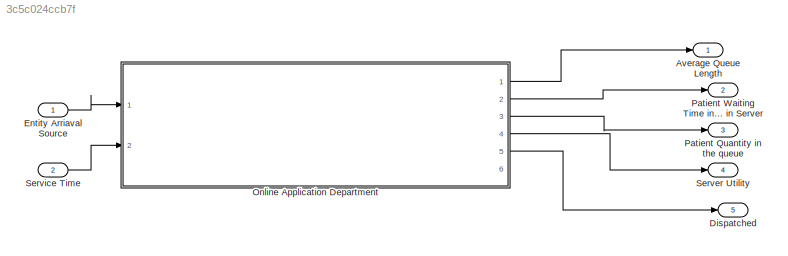
MODEL slx_3c5c024ccb7f
KIND library
CONFIG AbsTol = auto
CONFIG EnableMultiTasking = off
CONFIG FixedStep = auto
CONFIG MaxStep = auto
CONFIG MinStep = auto
CONFIG RelTol = 1e-3
CONFIG SampleTimeConstraint = Unconstrained
CONFIG Solver = VariableStepAuto
CONFIG SolverName = VariableStepAuto
CONFIG StartTime = 0.0
CONFIG StopTime = 10.0
BLOCK [Outport] Average Queue Length
  IconDisplay = Port number
BLOCK [Outport] Dispatched
  IconDisplay = Port number
  Port = 5
BLOCK [Inport] Entity Arriaval Source
  IconDisplay = Port number
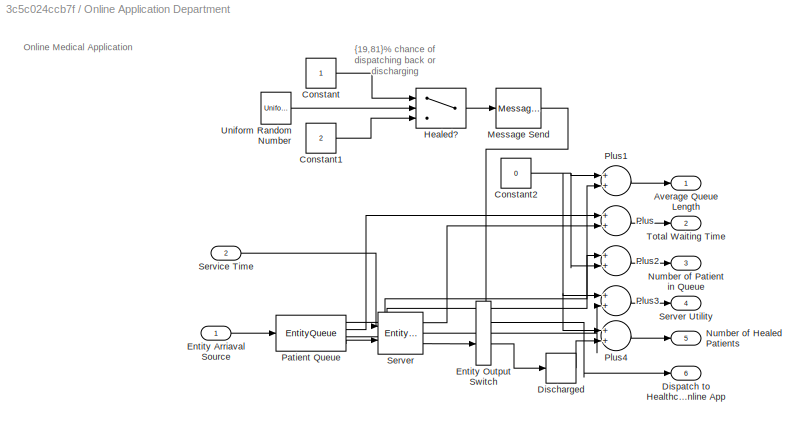
BLOCK [SubSystem] Online Application Department
  Ports = [2, 6]
  RequestExecContextInheritance = off
BLOCK [Outport] Online Application Department/Average Queue Length
  IconDisplay = Port number
BLOCK [Constant] Online Application Department/Constant
  VectorParams1D = off
BLOCK [Constant] Online Application Department/Constant1
  Value = 2
  VectorParams1D = off
BLOCK [Constant] Online Application Department/Constant2
  Value = 0
BLOCK [EntityTerminator] Online Application Department/Discharged
  InputPortMap = u0
  InputPortMessageModes = m
  NumberEntitiesArrived = on
  OutputPortMap = o0
  Ports = [1, 1]
BLOCK [Outport] Online Application Department/Dispatch to Healthcare or Online App
  IconDisplay = Port number
  Port = 6
BLOCK [Inport] Online Application Department/Entity Arriaval Source
  IconDisplay = Port number
BLOCK [EntityOutputSwitch] Online Application Department/Entity Output Switch
  InputPortMap = u0,u1
  InputPortMessageModes = m,m
  OutputPortMap = o0,o1
  OutputPortMessageModes = m,m
  Ports = [2, 2]
  SwitchAttributeName = Attribute1
  SwitchingCriterion = From control port
BLOCK [Switch] Online Application Department/Healed?
  Criteria = u2 > Threshold
  InputSameDT = off
  SaturateOnIntegerOverflow = off
  Threshold = 0.81
BLOCK [MessageSend] Online Application Department/Message Send
  InputPortMap = u1
  OutputPortMessageModes = m
  Ports = [1, 1]
BLOCK [Outport] Online Application Department/Number of Healed Patients
  IconDisplay = Port number
  Port = 5
BLOCK [Outport] Online Application Department/Number of Patient in Queue
  IconDisplay = Port number
  Port = 3
BLOCK [EntityQueue] Online Application Department/Patient Queue
  AverageQueueLength = on
  AverageWait = on
  Capacity = 100000
  InputPortMap = u0
  InputPortMessageModes = m
  NumberEntitiesInBlock = on
  OutputPortMap = o1,o2,o3,o5
  OutputPortMessageModes = n,n,n,m
  Ports = [1, 4]
BLOCK [Sum] Online Application Department/Plus
  InputSameDT = off
  OutDataTypeStr = Inherit: Inherit via internal rule
  Ports = [2, 1]
  SaturateOnIntegerOverflow = off
BLOCK [Sum] Online Application Department/Plus1
  InputSameDT = off
  OutDataTypeStr = Inherit: Inherit via internal rule
  Ports = [2, 1]
  SaturateOnIntegerOverflow = off
BLOCK [Sum] Online Application Department/Plus2
  InputSameDT = off
  OutDataTypeStr = Inherit: Inherit via internal rule
  Ports = [2, 1]
  SaturateOnIntegerOverflow = off
BLOCK [Sum] Online Application Department/Plus3
  InputSameDT = off
  OutDataTypeStr = Inherit: Inherit via internal rule
  Ports = [2, 1]
  SaturateOnIntegerOverflow = off
BLOCK [Sum] Online Application Department/Plus4
  InputSameDT = off
  OutDataTypeStr = Inherit: Inherit via internal rule
  Ports = [2, 1]
  SaturateOnIntegerOverflow = off
BLOCK [EntityServer] Online Application Department/Server
  AverageWait = on
  Capacity = 40
  InputPortMap = u0,u2
  InputPortMessageModes = n,m
  OutputPortMap = o4,o5,o9
  OutputPortMessageModes = n,n,m
  Ports = [2, 3]
  ServiceTimeSource = Signal port
  Utilization = on
BLOCK [Outport] Online Application Department/Server Utility
  IconDisplay = Port number
  Port = 4
BLOCK [Inport] Online Application Department/Service Time
  IconDisplay = Port number
  Port = 2
BLOCK [Outport] Online Application Department/Total Waiting Time
  IconDisplay = Port number
  Port = 2
BLOCK [UniformRandomNumber] Online Application Department/Uniform Random Number
  Minimum = 0
  SampleTime = 0.1
  Seed = 1325435
BLOCK [Outport] Patient Quantity in the queue
  IconDisplay = Port number
  Port = 3
BLOCK [Outport] Patient Waiting Time in Queue + Patient Examination Time in Server 
  IconDisplay = Port number
  Port = 2
BLOCK [Outport] Server Utility
  IconDisplay = Port number
  Port = 4
BLOCK [Inport] Service Time
  IconDisplay = Port number
  Port = 2
ANNOTATION Online Application Department: {19,81}% chance of dispatching back or discharging
ANNOTATION Online Application Department: Online Medical Application
LINE Entity Arriaval Source:1 -> Online Application Department:1
LINE Online Application Department/Constant1:1 -> Online Application Department/Healed?:3
NET Online Application Department/Constant2:1 -> Online Application Department/Plus1:1, Online Application Department/Plus2:2, Online Application Department/Plus3:1, Online Application Department/Plus4:1
LINE Online Application Department/Constant:1 -> Online Application Department/Healed?:1
LINE Online Application Department/Discharged:1 -> Online Application Department/Plus4:2
LINE Online Application Department/Entity Arriaval Source:1 -> Online Application Department/Patient Queue:1
LINE Online Application Department/Entity Output Switch:1 -> Online Application Department/Dispatch to Healthcare or Online App:1
LINE Online Application Department/Entity Output Switch:2 -> Online Application Department/Discharged:1
LINE Online Application Department/Healed?:1 -> Online Application Department/Message Send:1
LINE Online Application Department/Message Send:1 -> Online Application Department/Entity Output Switch:1
LINE Online Application Department/Patient Queue:1 -> Online Application Department/Plus2:1
LINE Online Application Department/Patient Queue:2 -> Online Application Department/Plus:1
LINE Online Application Department/Patient Queue:3 -> Online Application Department/Plus1:2
LINE Online Application Department/Patient Queue:4 -> Online Application Department/Server:2
LINE Online Application Department/Plus1:1 -> Online Application Department/Average Queue Length:1
LINE Online Application Department/Plus2:1 -> Online Application Department/Number of Patient in Queue:1
LINE Online Application Department/Plus3:1 -> Online Application Department/Server Utility:1
LINE Online Application Department/Plus4:1 -> Online Application Department/Number of Healed Patients:1
LINE Online Application Department/Plus:1 -> Online Application Department/Total Waiting Time:1
LINE Online Application Department/Server:1 -> Online Application Department/Plus:2
LINE Online Application Department/Server:2 -> Online Application Department/Plus3:2
LINE Online Application Department/Server:3 -> Online Application Department/Entity Output Switch:2
LINE Online Application Department/Service Time:1 -> Online Application Department/Server:1
LINE Online Application Department/Uniform Random Number:1 -> Online Application Department/Healed?:2
LINE Online Application Department:1 -> Average Queue Length:1
LINE Online Application Department:2 -> Patient Waiting Time in Queue + Patient Examination Time in Server :1
LINE Online Application Department:3 -> Patient Quantity in the queue:1
LINE Online Application Department:4 -> Server Utility:1
LINE Online Application Department:5 -> Dispatched:1
LINE Service Time:1 -> Online Application Department:2
note: NET lines group one-source signal fan-out (src -> all destinations, sorted); 1:1 wires keep LINE
